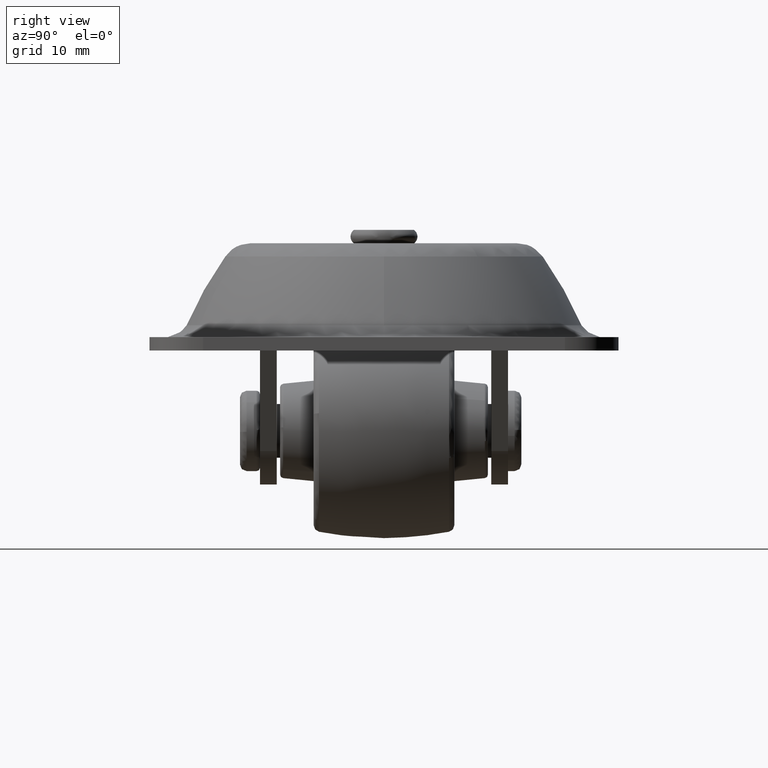
[diagram: clean part render]
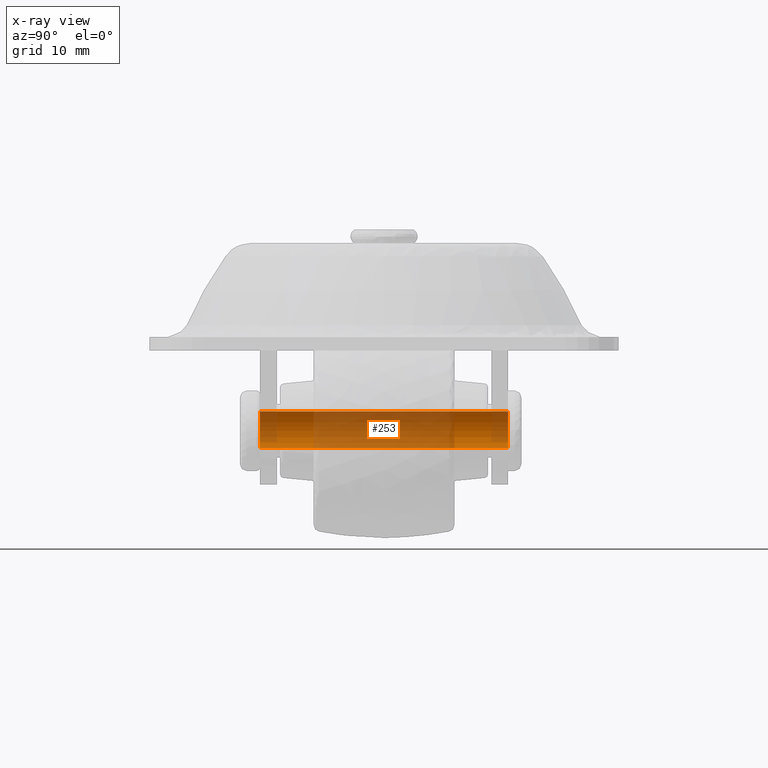
[diagram: x-ray — body ghosted, one internal face saturated and labeled with its STEP entity id]
A machine part, right view, then the same camera in x-ray: the body is ghosted and one INTERNAL B-rep face — a face not visible from any outside direction — is saturated and labeled: STEP entity #253.
In plain terms, the highlighted face is a freeform B-spline surface patch.
Its self-contained STEP definition (entity closure, byte-faithful):
#70=CARTESIAN_POINT('',(-3.054222795551755,18.500628914533479,-2.582968248257628));
#71=VERTEX_POINT('',#70);
#115=CARTESIAN_POINT('',(-2.753418152662452,18.500628914532559,2.901497302542996));
#116=VERTEX_POINT('',#115);
#126=CARTESIAN_POINT('',(-2.753418152523380,-18.508628918447400,2.901497302674971));
#127=VERTEX_POINT('',#126);
#128=CARTESIAN_POINT('',(-2.753418152662452,18.500628914532559,2.901497302542996));
#129=CARTESIAN_POINT('',(-2.753418152523380,-18.508628918447400,2.901497302674971));
#130=QUASI_UNIFORM_CURVE('',1,(#128,#129),.UNSPECIFIED.,.F.,.U.);
#131=EDGE_CURVE('',#116,#127,#130,.T.);
#175=CARTESIAN_POINT('',(-3.054222794984636,-18.508628918447400,-2.582968248928217));
#176=VERTEX_POINT('',#175);
#187=CARTESIAN_POINT('',(-3.054222795551755,18.500628914533479,-2.582968248257628));
#188=CARTESIAN_POINT('',(-3.054222794984636,-18.508628918447400,-2.582968248928217));
#189=QUASI_UNIFORM_CURVE('',1,(#187,#188),.UNSPECIFIED.,.F.,.U.);
#190=EDGE_CURVE('',#71,#176,#189,.T.);
#195=CARTESIAN_POINT('',(-2.753418302775015,19.425860360357571,2.901497484049151));
#196=CARTESIAN_POINT('',(-5.493457432700279,19.425860360357568,0.301297438337808));
#197=CARTESIAN_POINT('',(-3.054222571761859,19.425860360357571,-2.582968153528100));
#198=CARTESIAN_POINT('',(-2.753418302775015,-19.456991150417519,2.901497484049151));
#199=CARTESIAN_POINT('',(-5.493457432700279,-19.456991150417519,0.301297438337808));
#200=CARTESIAN_POINT('',(-3.054222571761859,-19.456991150417519,-2.582968153528100));
#208=(BOUNDED_SURFACE()B_SPLINE_SURFACE(2,1,((#195,#198),(#196,#199),(#197,#200)),.UNSPECIFIED.,.F.,.F.,.U.)B_SPLINE_SURFACE_WITH_KNOTS((3,3),(2,2),(0.0,6.360574234835159),(0.0,38.882851510775090),.UNSPECIFIED.)GEOMETRIC_REPRESENTATION_ITEM()RATIONAL_B_SPLINE_SURFACE(((1.0,1.0),(0.718822509939086,0.718822509939086),(0.977505800795127,0.977505800795127)))REPRESENTATION_ITEM('')SURFACE());
#209=CARTESIAN_POINT('',(-3.999999999999889,18.500628914533049,-0.000000941252240));
#210=VERTEX_POINT('',#209);
#211=CARTESIAN_POINT('',(-3.999999999999889,18.500628914533049,-0.000000941252240));
#212=CARTESIAN_POINT('',(-4.000198234234744,18.500628914533120,-0.409521823294690));
#213=CARTESIAN_POINT('',(-3.891229407138720,18.500628914533220,-1.111399222505363));
#214=CARTESIAN_POINT('',(-3.509950095080662,18.500628914533451,-1.972390610400423));
#215=CARTESIAN_POINT('',(-3.205334790939846,18.500628914533319,-2.404307397242578));
#216=CARTESIAN_POINT('',(-3.054222795551755,18.500628914533479,-2.582968248257628));
#217=B_SPLINE_CURVE_WITH_KNOTS('',3,(#211,#212,#213,#214,#215,#216),.UNSPECIFIED.,.F.,.U.,(4,1,1,4),(0.000000020536427,1.228505835726445,2.105993964752968,2.807991959752156),.UNSPECIFIED.);
#218=EDGE_CURVE('',#210,#71,#217,.T.);
#219=ORIENTED_EDGE('',*,*,#218,.T.);
#220=ORIENTED_EDGE('',*,*,#190,.T.);
#221=CARTESIAN_POINT('',(-3.999999999999889,-18.508628918447400,-0.000000941252240));
#222=VERTEX_POINT('',#221);
#223=CARTESIAN_POINT('',(-3.999999999999889,-18.508628918447400,-0.000000941252240));
#224=CARTESIAN_POINT('',(-4.000135188627665,-18.508628918447361,-0.365639076583120));
#225=CARTESIAN_POINT('',(-3.907104230795125,-18.508628918447450,-1.038311385594132));
#226=CARTESIAN_POINT('',(-3.549404056484656,-18.508628918447371,-1.909988252626612));
#227=CARTESIAN_POINT('',(-3.224234218018490,-18.508628918447421,-2.381980962235798));
#228=CARTESIAN_POINT('',(-3.054222794984636,-18.508628918447400,-2.582968248928217));
#229=B_SPLINE_CURVE_WITH_KNOTS('',3,(#223,#224,#225,#226,#227,#228),.UNSPECIFIED.,.F.,.U.,(4,1,1,4),(0.000000020536607,1.096873912304621,2.018243119818653,2.807991960630414),.UNSPECIFIED.);
#230=EDGE_CURVE('',#222,#176,#229,.T.);
#231=ORIENTED_EDGE('',*,*,#230,.F.);
#232=CARTESIAN_POINT('',(-2.753418152523380,-18.508628918447400,2.901497302674971));
#233=CARTESIAN_POINT('',(-3.097125290240771,-18.508628918447378,2.575849872350833));
#234=CARTESIAN_POINT('',(-3.574808127775851,-18.508628918447489,1.925157580050044));
#235=CARTESIAN_POINT('',(-3.934139981707929,-18.508628918447311,0.896104256450086));
#236=CARTESIAN_POINT('',(-4.000039565025364,-18.508628918447460,0.287433424293908));
#237=CARTESIAN_POINT('',(-3.999999999999889,-18.508628918447400,-0.000000941252240));
#238=B_SPLINE_CURVE_WITH_KNOTS('',3,(#232,#233,#234,#235,#236,#237),.UNSPECIFIED.,.F.,.U.,(4,1,1,4),(0.000000033079532,1.420287231371242,2.384026187750795,3.246334988467523),.UNSPECIFIED.);
#239=EDGE_CURVE('',#127,#222,#238,.T.);
#240=ORIENTED_EDGE('',*,*,#239,.F.);
#241=ORIENTED_EDGE('',*,*,#131,.F.);
#242=CARTESIAN_POINT('',(-2.753418152662452,18.500628914532559,2.901497302542996));
#243=CARTESIAN_POINT('',(-3.047933708034999,18.500628914532601,2.622302951664584));
#244=CARTESIAN_POINT('',(-3.466770887774445,18.500628914532669,2.081364002721052));
#245=CARTESIAN_POINT('',(-3.896154184122791,18.500628914532950,1.082000344323347));
#246=CARTESIAN_POINT('',(-4.000205188636886,18.500628914532879,0.405812716779141));
#247=CARTESIAN_POINT('',(-3.999999999999889,18.500628914533049,-0.000000941252240));
#248=B_SPLINE_CURVE_WITH_KNOTS('',3,(#242,#243,#244,#245,#246,#247),.UNSPECIFIED.,.F.,.U.,(4,1,1,4),(0.000000033079834,1.217376175067543,2.028958846272915,3.246334988275791),.UNSPECIFIED.);
#249=EDGE_CURVE('',#116,#210,#248,.T.);
#250=ORIENTED_EDGE('',*,*,#249,.T.);
#251=EDGE_LOOP('',(#219,#220,#231,#240,#241,#250));
#252=FACE_OUTER_BOUND('',#251,.T.);
#253=ADVANCED_FACE('',(#252),#208,.T.);